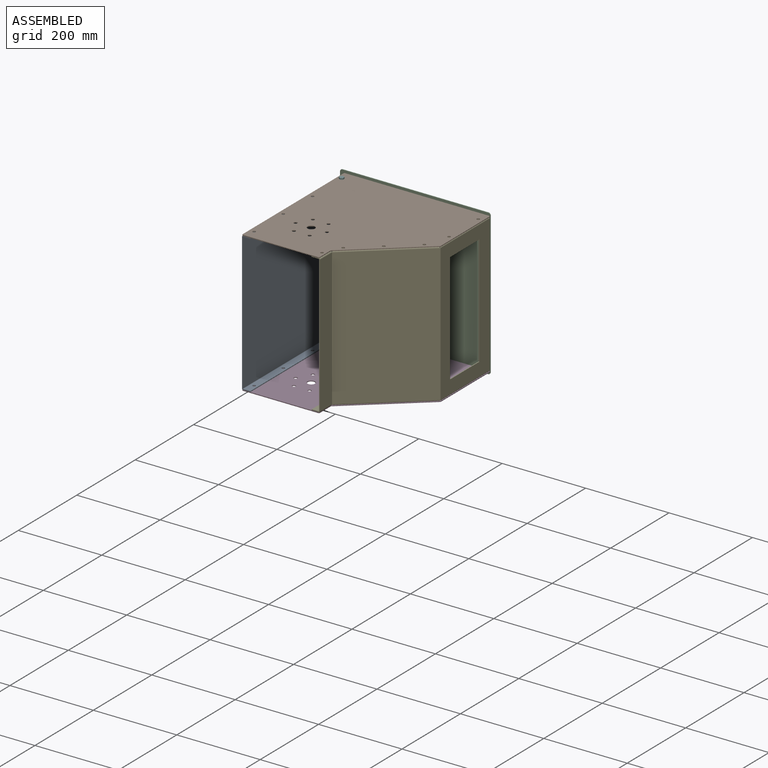
[diagram: assembled view]
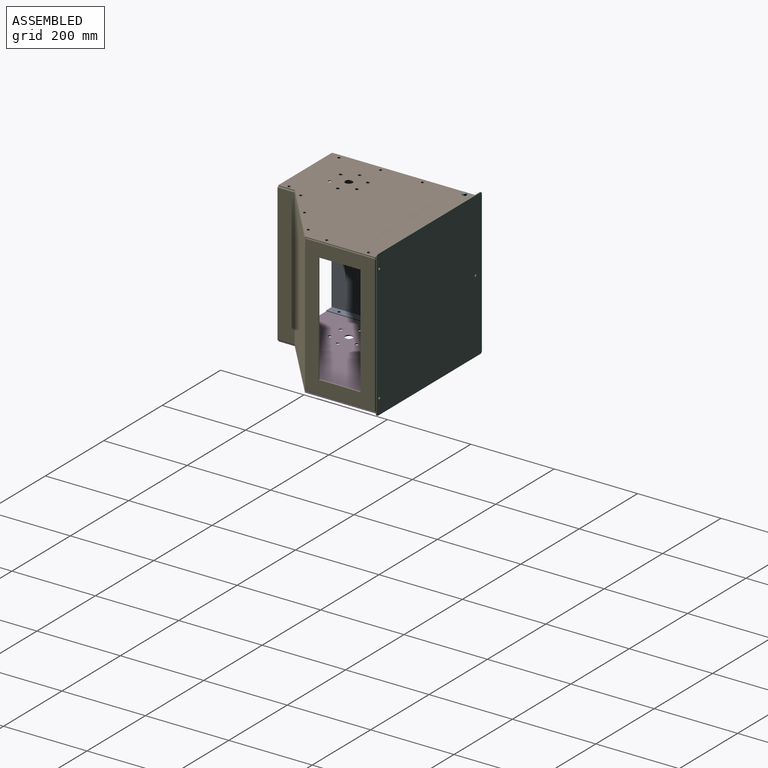
[diagram: assembled view, second angle]
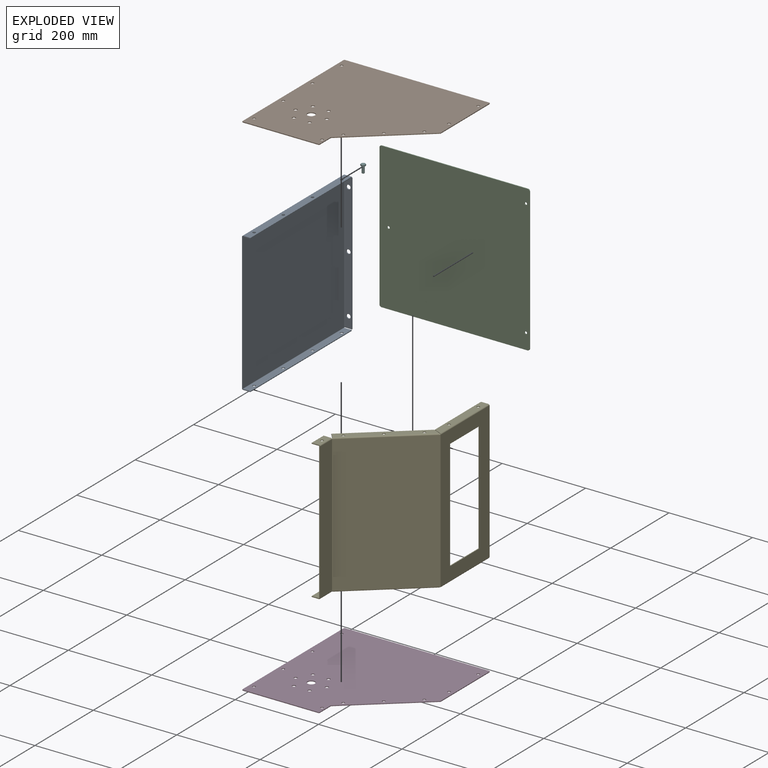
[diagram: exploded view]
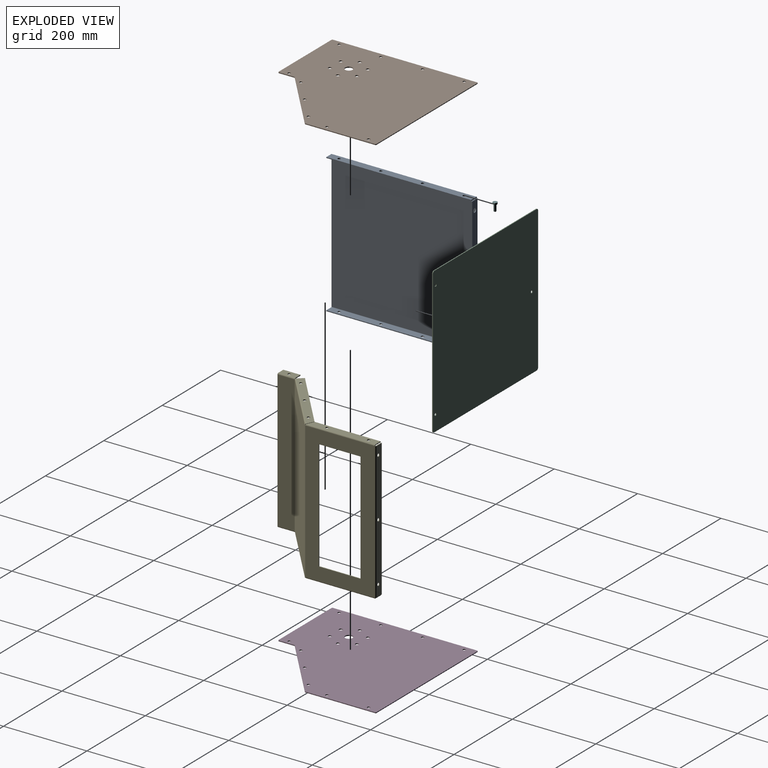
[diagram: exploded view, second angle]
ASSEMBLY  parts=6 mates=10
PART A: 41 faces, bbox 334x350x20 mm
  f0: cylinder r=5mm len=10mm, axis (0,1,0), area 62.8mm2, adj f31,f32
  f1: cylinder r=3.5mm len=7mm, axis (1,0,0), area 44mm2, adj f22,f23
  f2: cylinder r=3.5mm len=7mm, axis (1,0,0), area 44mm2, adj f22,f23
  f3: cylinder r=3.5mm len=7mm, axis (1,0,0), area 44mm2, adj f13,f14
  f4: cylinder r=3.5mm len=7mm, axis (1,0,0), area 44mm2, adj f13,f14
  f5: plane 347.26x328.53mm, normal (0,0,-1), area 114085.3mm2, adj f7,f10,f19,f28
  f6: plane 347.26x328.53mm, normal (0,0,1), area 114085.3mm2, adj f7,f11,f20,f29
  f7: plane 328.53x2mm, normal (0,-1,0), area 657.1mm2, adj f5,f6,f9,f17
  f8: bspline ~2.76x2.76mm, area 5.5mm2, adj f10,f11,f12,f27
  f9: plane 2.74x2.74mm, normal (0,-1,0), area 5.5mm2, adj f7,f10,f11,f16
  f10: cylinder r=2.74mm len=347.29mm, axis (0,-1,0), area 1492.8mm2, adj f5,f8,f9,f13
  f11: cylinder r=0.74mm len=347.29mm, axis (0,-1,0), area 401.8mm2, adj f6,f8,f9,f14
  f12: plane 17.26x2mm, normal (0,1,0), area 34.5mm2, adj f8,f13,f14,f15
  f13: plane 347.29x17.26mm, normal (-1,0,0), area 5841.5mm2, adj f3,f4,f10,f12,f15,f16,f36,f37
  f14: plane 347.29x17.26mm, normal (1,0,0), area 5841.5mm2, adj f3,f4,f11,f12,f15,f16,f36,f37
  f15: plane 347.29x2mm, normal (0,0,1), area 694.6mm2, adj f12,f13,f14,f16
  f16: plane 17.26x2mm, normal (0,-1,0), area 34.5mm2, adj f9,f13,f14,f15
  f17: plane 2.74x2.74mm, normal (0,-1,0), area 5.5mm2, adj f7,f19,f20,f21
  f18: bspline ~2.76x2.76mm, area 5.5mm2, adj f19,f20,f25,f26
  f19: cylinder r=2.74mm len=347.29mm, axis (0,1,0), area 1492.8mm2, adj f5,f17,f18,f22
  f20: cylinder r=0.74mm len=347.29mm, axis (0,1,0), area 401.8mm2, adj f6,f17,f18,f23
  f21: plane 17.26x2mm, normal (0,-1,0), area 34.5mm2, adj f17,f22,f23,f24
  f22: plane 347.29x17.26mm, normal (1,0,0), area 5841.5mm2, adj f1,f2,f19,f21,f24,f25,f35,f38
  f23: plane 347.29x17.26mm, normal (-1,0,0), area 5841.5mm2, adj f1,f2,f20,f21,f24,f25,f35,f38
  f24: plane 347.29x2mm, normal (0,0,1), area 694.6mm2, adj f21,f22,f23,f25
  f25: plane 17.26x2mm, normal (0,1,0), area 34.5mm2, adj f18,f22,f23,f24
  f26: bspline ~2.76x2.76mm, area 5.5mm2, adj f18,f28,f29,f30
  f27: bspline ~2.76x2.76mm, area 5.5mm2, adj f8,f28,f29,f34
  f28: cylinder r=2.74mm len=328.59mm, axis (-1,0,0), area 1412.3mm2, adj f5,f26,f27,f31
  f29: cylinder r=0.74mm len=328.59mm, axis (-1,0,0), area 380.2mm2, adj f6,f26,f27,f32
  f30: plane 17.26x2mm, normal (1,0,0), area 34.5mm2, adj f26,f31,f32,f33
  f31: plane 328.59x17.26mm, normal (0,1,0), area 5436.9mm2, adj f0,f28,f30,f33,f34,f39,f40
  f32: plane 328.59x17.26mm, normal (0,-1,0), area 5436.9mm2, adj f0,f29,f30,f33,f34,f39,f40
  f33: plane 328.59x2mm, normal (0,0,1), area 657.2mm2, adj f30,f31,f32,f34
  f34: plane 17.26x2mm, normal (-1,0,0), area 34.5mm2, adj f27,f31,f32,f33
  f35: cylinder r=3.5mm len=7mm, axis (1,0,0), area 44mm2, adj f22,f23
  f36: cylinder r=3.5mm len=7mm, axis (1,0,0), area 44mm2, adj f13,f14
  f37: cylinder r=3.5mm len=7mm, axis (1,0,0), area 44mm2, adj f13,f14
  f38: cylinder r=3.5mm len=7mm, axis (1,0,0), area 44mm2, adj f22,f23
  f39: cylinder r=5mm len=10mm, axis (0,1,0), area 62.8mm2, adj f31,f32
  f40: cylinder r=5mm len=10mm, axis (0,1,0), area 62.8mm2, adj f31,f32
PART B: 30 faces, bbox 350x350x2 mm
  f0: plane 346x2mm, normal (-1,0,0), area 692mm2, adj f6,f7,f15,f19
  f1: plane 346x2mm, normal (0,1,0), area 692mm2, adj f6,f7,f18,f19
  f2: plane 167.07x2mm, normal (1,0,0), area 334.1mm2, adj f6,f7,f17,f18
  f3: plane 164.29x139.4mm, normal (0.65,-0.76,0), area 430.9mm2, adj f4,f6,f7,f17
  f4: plane 38x2mm, normal (1,0,0), area 76mm2, adj f3,f6,f7,f16
  f5: plane 181x2mm, normal (0,-1,0), area 362mm2, adj f6,f7,f15,f16
  f6: plane 350x350mm, normal (0,0,-1), area 103405.5mm2, adj f0,f1,f2,f3,f4,f5,f8,f9
  f7: plane 350x350mm, normal (0,0,1), area 103405.5mm2, adj f0,f1,f2,f3,f4,f5,f8,f9
  f8: cylinder r=9mm len=18mm, axis (0,0,1), area 113.1mm2, adj f6,f7
  f9: cylinder r=4mm len=8mm, axis (0,0,1), area 50.3mm2, adj f6,f7
  f10: cylinder r=4mm len=8mm, axis (0,0,1), area 50.3mm2, adj f6,f7
  f11: cylinder r=4mm len=8mm, axis (0,0,1), area 50.3mm2, adj f6,f7
  f12: cylinder r=4mm len=8mm, axis (0,0,1), area 50.3mm2, adj f6,f7
  f13: cylinder r=4mm len=8mm, axis (0,0,1), area 50.3mm2, adj f6,f7
  f14: cylinder r=4mm len=8mm, axis (0,0,1), area 50.3mm2, adj f6,f7
  f15: cylinder r=2mm len=2mm, axis (0,0,1), area 6.3mm2, adj f0,f5,f6,f7
  f16: cylinder r=2mm len=2mm, axis (0,0,1), area 6.3mm2, adj f4,f5,f6,f7
  f17: cylinder r=2mm len=2mm, axis (0,0,1), area 3.5mm2, adj f2,f3,f6,f7
  f18: cylinder r=2mm len=2mm, axis (0,0,1), area 6.3mm2, adj f1,f2,f6,f7
  f19: cylinder r=2mm len=2mm, axis (0,0,1), area 6.3mm2, adj f0,f1,f6,f7
  f20: cylinder r=3.5mm len=7mm, axis (0,0,-1), area 44mm2, adj f6,f7
  f21: cylinder r=3.5mm len=7mm, axis (0,0,-1), area 44mm2, adj f6,f7
  f22: cylinder r=3.5mm len=7mm, axis (0,0,-1), area 44mm2, adj f6,f7
  f23: cylinder r=3.5mm len=7mm, axis (0,0,-1), area 44mm2, adj f6,f7
  f24: cylinder r=3.5mm len=7mm, axis (0,0,-1), area 44mm2, adj f6,f7
  f25: cylinder r=3.5mm len=7mm, axis (0,0,-1), area 44mm2, adj f6,f7
  f26: cylinder r=3.5mm len=7mm, axis (0,0,-1), area 44mm2, adj f6,f7
  f27: cylinder r=3.5mm len=7mm, axis (0,0,-1), area 44mm2, adj f6,f7
  f28: cylinder r=3.5mm len=7mm, axis (0,0,-1), area 44mm2, adj f6,f7
  f29: cylinder r=3.5mm len=7mm, axis (0,0,-1), area 44mm2, adj f6,f7
PART C: 13 faces, bbox 360x2x350 mm
  f0: plane 360x350mm, normal (0,1,0), area 125893.7mm2, adj f1,f2,f3,f4,f6,f7,f8,f9
  f1: plane 340x2mm, normal (1,0,0), area 680mm2, adj f0,f5,f7,f8
  f2: plane 350x2mm, normal (0,0,1), area 700mm2, adj f0,f5,f8,f9
  f3: plane 340x2mm, normal (-1,0,0), area 680mm2, adj f0,f5,f6,f9
  f4: plane 350x2mm, normal (0,0,-1), area 700mm2, adj f0,f5,f6,f7
  f5: plane 360x350mm, normal (0,-1,0), area 125893.7mm2, adj f1,f2,f3,f4,f6,f7,f8,f9
  f6: cylinder r=5mm len=5mm, axis (0,1,0), area 15.7mm2, adj f0,f3,f4,f5
  f7: cylinder r=5mm len=5mm, axis (0,1,0), area 15.7mm2, adj f0,f1,f4,f5
  f8: cylinder r=5mm len=5mm, axis (0,1,0), area 15.7mm2, adj f0,f1,f2,f5
  f9: cylinder r=5mm len=5mm, axis (0,1,0), area 15.7mm2, adj f0,f2,f3,f5
  f10: cylinder r=3mm len=6mm, axis (0,1,0), area 37.7mm2, adj f0,f5
  f11: cylinder r=3mm len=6mm, axis (0,1,0), area 37.7mm2, adj f0,f5
  f12: cylinder r=3mm len=6mm, axis (0,1,0), area 37.7mm2, adj f0,f5
PART D: same geometry as B
PART E: 105 faces, bbox 334x350x183 mm
  f0: cylinder r=3.5mm len=7mm, axis (0,1,0), area 44mm2, adj f83,f84
  f1: plane 0.74x0.1mm, normal (0,-1,0), area 0mm2, adj f17,f19,f71
  f2: plane 0.74x0.08mm, normal (0,0.65,0.76), area 0mm2, adj f17,f19,f62
  f3: plane 0.74x0.1mm, normal (0,-1,0), area 0mm2, adj f16,f19,f44
  f4: plane 0.74x0.08mm, normal (0,0.65,0.76), area 0mm2, adj f16,f19,f35
  f5: plane 328.53x166.3mm, normal (0,0,-1), area 28133.9mm2, adj f15,f27,f54,f81,f87,f88,f89,f90
  f6: plane 328.53x166.3mm, normal (0,0,1), area 28133.9mm2, adj f14,f26,f53,f80,f87,f88,f89,f90
  f7: plane 328.53x41.06mm, normal (0,0,-1), area 13490.3mm2, adj f9,f18,f45,f72
  f8: plane 328.53x41.06mm, normal (0,0,1), area 13490.3mm2, adj f9,f19,f44,f71
  f9: plane 328.53x2mm, normal (0,-1,0), area 657.1mm2, adj f7,f8,f42,f70
  f10: plane 328.53x161.78mm, normal (0,-0.76,0.65), area 69699.9mm2, adj f14,f19,f35,f62
  f11: plane 328.53x161.78mm, normal (0,0.76,-0.65), area 69699.9mm2, adj f15,f18,f36,f63
  f12: plane 2.26x2.09mm, normal (1,0,0), area 3mm2, adj f14,f15,f22,f23
  f13: plane 2.26x2.09mm, normal (-1,0,0), area 3mm2, adj f14,f15,f20,f21
  f14: cylinder r=2.74mm len=330mm, axis (-1,0,0), area 783.2mm2, adj f6,f10,f12,f13,f20,f21,f22,f23
  f15: cylinder r=0.74mm len=330mm, axis (-1,0,0), area 210.8mm2, adj f5,f11,f12,f13,f20,f21,f22,f23
  f16: plane 2.26x2.09mm, normal (-1,0,0), area 3mm2, adj f3,f4,f18,f19,f33,f43
  f17: plane 2.26x2.09mm, normal (1,0,0), area 3mm2, adj f1,f2,f18,f19,f61,f69
  f18: cylinder r=2.74mm len=330mm, axis (1,0,0), area 783.2mm2, adj f7,f11,f16,f17,f33,f43,f61,f69
  f19: cylinder r=0.74mm len=330mm, axis (1,0,0), area 210.8mm2, adj f1,f2,f3,f4,f8,f10,f16,f17
  f20: plane 2x0.74mm, normal (0,1,0), area 1.5mm2, adj f13,f14,f15,f24
  f21: plane 1.53x1.29mm, normal (0,-0.65,-0.76), area 1.5mm2, adj f13,f14,f15,f34
  f22: plane 2x0.74mm, normal (0,1,0), area 1.5mm2, adj f12,f14,f15,f52
  f23: plane 1.53x1.29mm, normal (0,-0.65,-0.76), area 1.5mm2, adj f12,f14,f15,f60
  f24: bspline ~2.76x2.76mm, area 5.6mm2, adj f20,f26,f27,f32
  f25: bspline ~2.76x2.76mm, area 5.5mm2, adj f26,f27,f31,f78
  f26: cylinder r=2.74mm len=166.33mm, axis (0,1,0), area 713.7mm2, adj f6,f24,f25,f28
  f27: cylinder r=0.74mm len=166.33mm, axis (0,1,0), area 192.1mm2, adj f5,f24,f25,f29
  f28: plane 165.78x17.26mm, normal (-1,0,0), area 2715.9mm2, adj f26,f30,f31,f32,f94,f95
  f29: plane 165.78x17.26mm, normal (1,0,0), area 2715.9mm2, adj f27,f30,f31,f32,f94,f95
  f30: plane 157.79x2mm, normal (0,0,-1), area 315.6mm2, adj f28,f29,f31,f32
  f31: plane 17.26x2mm, normal (0,1,0), area 34.5mm2, adj f25,f28,f29,f30
  f32: plane 17.26x7.99mm, normal (0,-0.91,-0.42), area 38mm2, adj f24,f28,f29,f30
  f33: plane 2.74x2.01mm, normal (0,-0.65,-0.76), area 4mm2, adj f16,f18,f35,f36,f40
  f34: bspline ~2.76x2.2mm, area 5.6mm2, adj f21,f35,f36,f41
  f35: cylinder r=2.74mm len=163.55mm, axis (0,0.65,0.76), area 910.8mm2, adj f4,f10,f33,f34,f37
  f36: cylinder r=0.74mm len=162.26mm, axis (0,0.65,0.76), area 245.2mm2, adj f11,f33,f34,f38
  f37: plane 172.53x144.89mm, normal (-1,0,0), area 3468.6mm2, adj f35,f39,f40,f41,f98,f102,f104
  f38: plane 172.53x144.89mm, normal (1,0,0), area 3468.6mm2, adj f36,f39,f40,f41,f98,f102,f104
  f39: plane 155.27x131.72mm, normal (0,0.76,-0.65), area 407.2mm2, adj f37,f38,f40,f41
  f40: plane 13.16x11.17mm, normal (0,-0.65,-0.76), area 34.5mm2, adj f33,f37,f38,f39
  f41: plane 17.26x7.99mm, normal (0,0.91,0.42), area 38mm2, adj f34,f37,f38,f39
  f42: plane 2.74x2.74mm, normal (0,-1,0), area 5.5mm2, adj f9,f44,f45,f46
  f43: plane 2.74x2.64mm, normal (0,1,0), area 4mm2, adj f16,f18,f44,f45,f47
  f44: cylinder r=2.74mm len=41.06mm, axis (0,1,0), area 176.5mm2, adj f3,f8,f42,f43,f48
  f45: cylinder r=0.74mm len=41.06mm, axis (0,1,0), area 47.5mm2, adj f7,f42,f43,f49
  f46: plane 17.26x2mm, normal (0,-1,0), area 34.5mm2, adj f42,f48,f49,f50
  f47: plane 17.26x2mm, normal (0,1,0), area 34.5mm2, adj f43,f48,f49,f50
  f48: plane 41.06x17.26mm, normal (-1,0,0), area 670.4mm2, adj f44,f46,f47,f50,f100
  f49: plane 41.06x17.26mm, normal (1,0,0), area 670.4mm2, adj f45,f46,f47,f50,f100
  f50: plane 41.06x2mm, normal (0,0,-1), area 82.1mm2, adj f46,f47,f48,f49
  f51: bspline ~2.76x2.76mm, area 5.5mm2, adj f53,f54,f58,f79
  f52: bspline ~2.76x2.76mm, area 5.6mm2, adj f22,f53,f54,f59
  f53: cylinder r=2.74mm len=166.33mm, axis (0,-1,0), area 713.7mm2, adj f6,f51,f52,f55
  f54: cylinder r=0.74mm len=166.33mm, axis (0,-1,0), area 192.1mm2, adj f5,f51,f52,f56
  f55: plane 165.78x17.26mm, normal (1,0,0), area 2715.9mm2, adj f53,f57,f58,f59,f93,f96
  f56: plane 165.78x17.26mm, normal (-1,0,0), area 2715.9mm2, adj f54,f57,f58,f59,f93,f96
  f57: plane 157.79x2mm, normal (0,0,-1), area 315.6mm2, adj f55,f56,f58,f59
  f58: plane 17.26x2mm, normal (0,1,0), area 34.5mm2, adj f51,f55,f56,f57
  f59: plane 17.26x7.99mm, normal (0,-0.91,-0.42), area 38mm2, adj f52,f55,f56,f57
  f60: bspline ~2.76x2.2mm, area 5.6mm2, adj f23,f62,f63,f68
  f61: plane 2.74x2.01mm, normal (0,-0.65,-0.76), area 4mm2, adj f17,f18,f62,f63,f67
  f62: cylinder r=2.74mm len=163.55mm, axis (0,-0.65,-0.76), area 910.8mm2, adj f2,f10,f60,f61,f64
  f63: cylinder r=0.74mm len=162.26mm, axis (0,-0.65,-0.76), area 245.2mm2, adj f11,f60,f61,f65
  f64: plane 172.53x144.89mm, normal (1,0,0), area 3468.6mm2, adj f62,f66,f67,f68,f97,f101,f103
  f65: plane 172.53x144.89mm, normal (-1,0,0), area 3468.6mm2, adj f63,f66,f67,f68,f97,f101,f103
  f66: plane 155.27x131.72mm, normal (0,0.76,-0.65), area 407.2mm2, adj f64,f65,f67,f68
  f67: plane 13.16x11.17mm, normal (0,-0.65,-0.76), area 34.5mm2, adj f61,f64,f65,f66
  f68: plane 17.26x7.99mm, normal (0,0.91,0.42), area 38mm2, adj f60,f64,f65,f66
  f69: plane 2.74x2.64mm, normal (0,1,0), area 4mm2, adj f17,f18,f71,f72,f73
  f70: plane 2.74x2.74mm, normal (0,-1,0), area 5.5mm2, adj f9,f71,f72,f74
  f71: cylinder r=2.74mm len=41.06mm, axis (0,-1,0), area 176.5mm2, adj f1,f8,f69,f70,f75
  f72: cylinder r=0.74mm len=41.06mm, axis (0,-1,0), area 47.5mm2, adj f7,f69,f70,f76
  f73: plane 17.26x2mm, normal (0,1,0), area 34.5mm2, adj f69,f75,f76,f77
  f74: plane 17.26x2mm, normal (0,-1,0), area 34.5mm2, adj f70,f75,f76,f77
  f75: plane 41.06x17.26mm, normal (1,0,0), area 670.4mm2, adj f71,f73,f74,f77,f99
  f76: plane 41.06x17.26mm, normal (-1,0,0), area 670.4mm2, adj f72,f73,f74,f77,f99
  f77: plane 41.06x2mm, normal (0,0,-1), area 82.1mm2, adj f73,f74,f75,f76
  f78: bspline ~2.74x2.74mm, area 5.5mm2, adj f25,f80,f81,f82
  f79: bspline ~2.76x2.76mm, area 5.5mm2, adj f51,f80,f81,f86
  f80: cylinder r=2.74mm len=328.59mm, axis (1,0,0), area 1412.3mm2, adj f6,f78,f79,f83
  f81: cylinder r=0.74mm len=328.59mm, axis (1,0,0), area 380.2mm2, adj f5,f78,f79,f84
  f82: plane 17.26x2mm, normal (-1,0,0), area 34.5mm2, adj f78,f83,f84,f85
  f83: plane 328.59x17.26mm, normal (0,1,0), area 5557.1mm2, adj f0,f80,f82,f85,f86,f91,f92
  f84: plane 328.59x17.26mm, normal (0,-1,0), area 5557.1mm2, adj f0,f81,f82,f85,f86,f91,f92
  f85: plane 328.59x2mm, normal (0,0,-1), area 657.2mm2, adj f82,f83,f84,f86
  f86: plane 17.26x2mm, normal (1,0,0), area 34.5mm2, adj f79,f83,f84,f85
  f87: plane 100x2mm, normal (1,0,0), area 200mm2, adj f5,f6,f88,f90
  f88: plane 265x2mm, normal (0,1,0), area 530mm2, adj f5,f6,f87,f89
  f89: plane 100x2mm, normal (-1,0,0), area 200mm2, adj f5,f6,f88,f90
  f90: plane 265x2mm, normal (0,-1,0), area 530mm2, adj f5,f6,f87,f89
  f91: cylinder r=3.5mm len=7mm, axis (0,1,0), area 44mm2, adj f83,f84
  f92: cylinder r=3.5mm len=7mm, axis (0,1,0), area 44mm2, adj f83,f84
  f93: cylinder r=3.5mm len=7mm, axis (1,0,0), area 44mm2, adj f55,f56
  f94: cylinder r=3.5mm len=7mm, axis (1,0,0), area 44mm2, adj f28,f29
  f95: cylinder r=3.5mm len=7mm, axis (1,0,0), area 44mm2, adj f28,f29
  f96: cylinder r=3.5mm len=7mm, axis (1,0,0), area 44mm2, adj f55,f56
  f97: cylinder r=3.5mm len=7mm, axis (1,0,0), area 44mm2, adj f64,f65
  f98: cylinder r=3.5mm len=7mm, axis (1,0,0), area 44mm2, adj f37,f38
  f99: cylinder r=3.5mm len=7mm, axis (1,0,0), area 44mm2, adj f75,f76
  f100: cylinder r=3.5mm len=7mm, axis (1,0,0), area 44mm2, adj f48,f49
  f101: cylinder r=3.5mm len=7mm, axis (1,0,0), area 44mm2, adj f64,f65
  f102: cylinder r=3.5mm len=7mm, axis (1,0,0), area 44mm2, adj f37,f38
  f103: cylinder r=3.5mm len=7mm, axis (1,0,0), area 44mm2, adj f64,f65
  f104: cylinder r=3.5mm len=7mm, axis (1,0,0), area 44mm2, adj f37,f38
PART F: 25 faces, bbox 20.5x12x12 mm
  f0: cylinder r=3mm len=15.25mm, axis (-1,0,0), area 287.5mm2, adj f22,f24
  f1: plane 10x10mm, normal (-1,0,0), area 78.5mm2, adj f2,f3,f4,f5,f6,f7
  f2: cone r=5.78mm half-angle=60deg, axis (1,0,0), area 2.5mm2, adj f1,f8,f9
  f3: cone r=5.78mm half-angle=60deg, axis (1,0,0), area 2.5mm2, adj f1,f9,f10
  f4: cone r=5.78mm half-angle=60deg, axis (1,0,0), area 2.5mm2, adj f1,f10,f11
  f5: cone r=5.78mm half-angle=60deg, axis (1,0,0), area 2.5mm2, adj f1,f11,f12
  f6: cone r=5.78mm half-angle=60deg, axis (1,0,0), area 2.5mm2, adj f1,f8,f13
  f7: cone r=5.78mm half-angle=60deg, axis (1,0,0), area 2.5mm2, adj f1,f12,f13
  f8: plane 5.47x3.97mm, normal (0,-0.87,0.5), area 19.3mm2, adj f2,f6,f9,f13,f14,f15
  f9: plane 5.47x3.97mm, normal (0,-0.87,-0.5), area 19.3mm2, adj f2,f3,f8,f10,f15,f16
  f10: plane 6.25x3.97mm, normal (0,0,-1), area 19.3mm2, adj f3,f4,f9,f11,f16,f17
  f11: plane 5.47x3.97mm, normal (0,0.87,-0.5), area 19.3mm2, adj f4,f5,f10,f12,f17,f18
  f12: plane 5.47x3.97mm, normal (0,0.87,0.5), area 19.3mm2, adj f5,f7,f11,f13,f18,f19
  f13: plane 6.25x3.97mm, normal (0,0,1), area 19.3mm2, adj f6,f7,f8,f12,f14,f19
  f14: plane 4.33x2.5mm, normal (1,0,0), area 1.3mm2, adj f8,f13,f20
  f15: plane 5x1.44mm, normal (1,0,0), area 1.3mm2, adj f8,f9,f20
  f16: plane 4.33x2.5mm, normal (1,0,0), area 1.3mm2, adj f9,f10,f20
  f17: plane 4.33x2.5mm, normal (1,0,0), area 1.3mm2, adj f10,f11,f20
  f18: plane 5x1.44mm, normal (1,0,0), area 1.3mm2, adj f11,f12,f20
  f19: plane 4.33x2.5mm, normal (1,0,0), area 1.3mm2, adj f12,f13,f20
  f20: cylinder r=5mm len=10mm, axis (-1,0,0), area 15.7mm2, adj f14,f15,f16,f17,f18,f19,f21
  f21: plane 10x10mm, normal (1,0,0), area 45.4mm2, adj f20,f22
  f22: torus R=3.25mm, axis (1,0,0), area 7.6mm2, adj f0,f21
  f23: plane 5x5mm, normal (1,0,0), area 19.6mm2, adj f24
  f24: cone r=3mm half-angle=45deg, axis (-1,0,0), area 12.2mm2, adj f0,f23
PLACE A rot(axis=(0,1,0),90deg) t=(0,0.37,0)mm
PLACE B t=(90.5,1.37,169)mm
PLACE C t=(168,178.37,0)mm
PLACE D t=(90.5,1.37,-167)mm
PLACE E rot(axis=(0,1,0),90deg) t=(348,89.37,0)mm
PLACE F rot(axis=(0,1,0),90deg) t=(9.5,151.37,173)mm
MATE planar D.f9 <-> A.f22  axis (0,0,1) through (71.75,-36.16,-167)mm
MATE cylindrical E.f93 <-> D.f29  axis (0,0,-1) through (336.88,151.37,-166)mm
MATE cylindrical B.f20 <-> A.f35  axis (0,0,-1) through (9.5,151.37,168)mm
MATE cylindrical D.f20 <-> A.f35  axis (0,0,1) through (9.5,151.37,-167)mm
MATE planar E.f55 <-> D.f7  axis (0,0,-1) through (336.7,92.51,-167)mm
MATE parallel B.f7 <-> F.f2  axis (0,0,1) through (154.16,21.55,169)mm
MATE planar E.f83 <-> C.f5  axis (0,1,0) through (336.59,176.37,-0.04)mm
MATE cylindrical F.f0 <-> B.f20  axis (0,0,1) through (9.5,151.37,161.12)mm
MATE planar B.f22 <-> A.f37  axis (0,0,-1) through (9.5,-48.63,167)mm
MATE cylindrical A.f40 <-> C.f10  axis (0,1,0) through (9.5,176.37,2)mm
